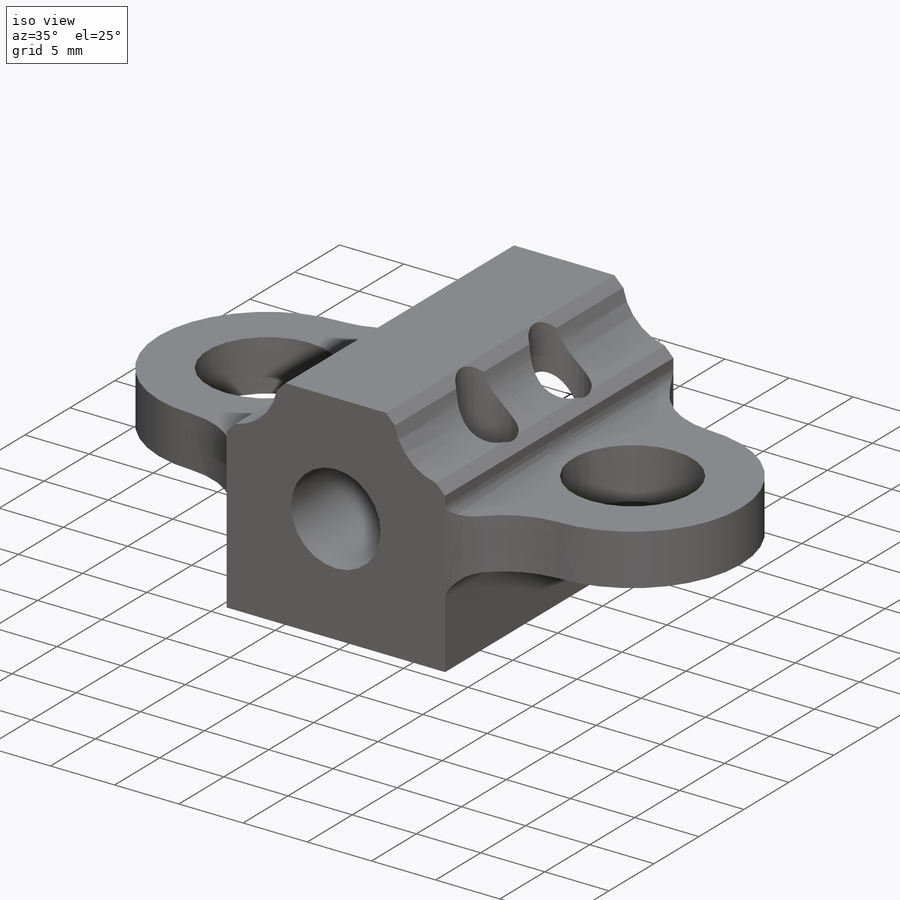
[diagram: iso view]
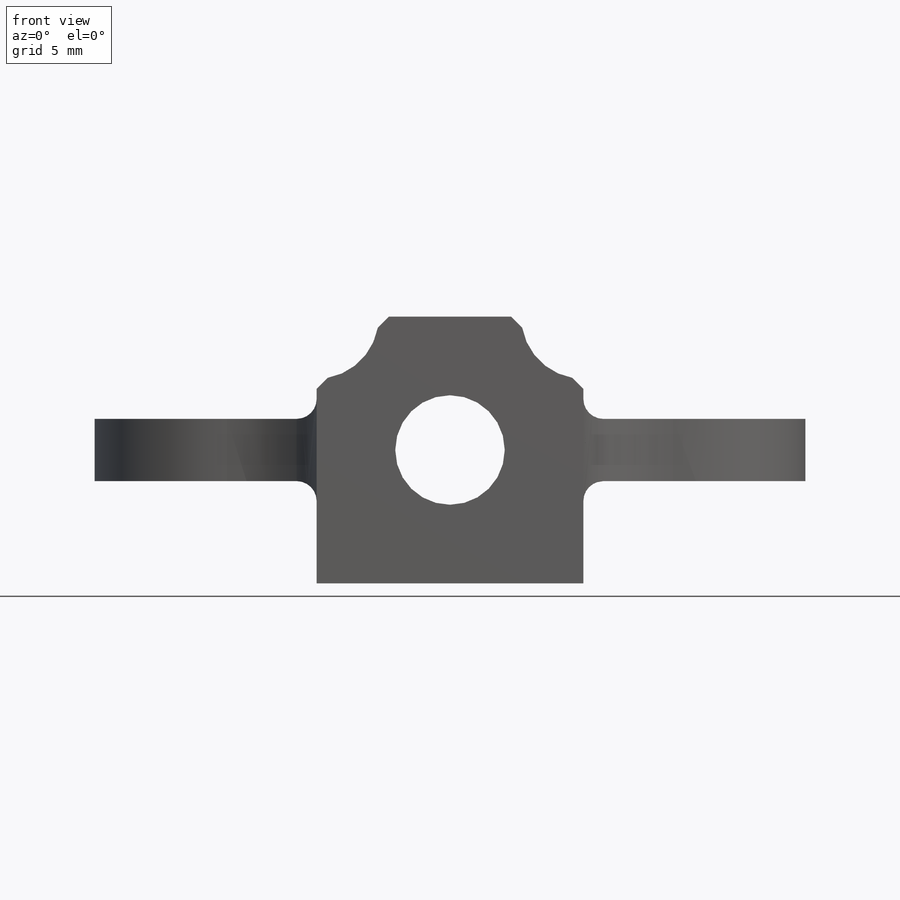
[diagram: front view]
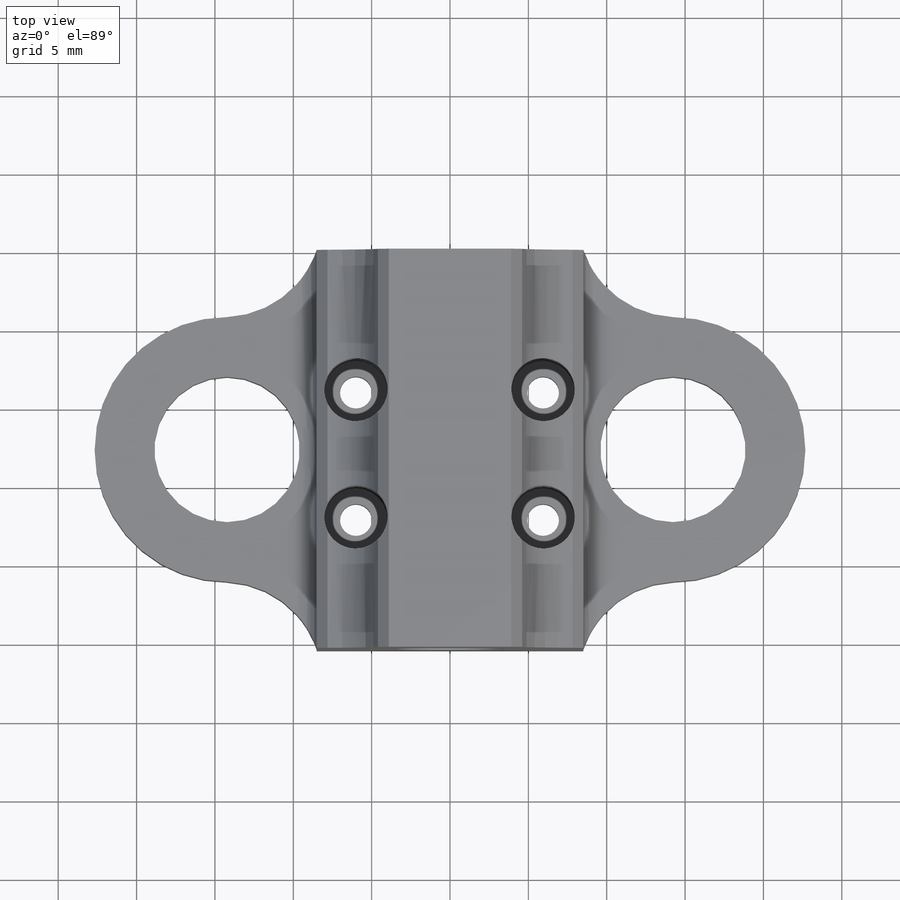
[diagram: top view]
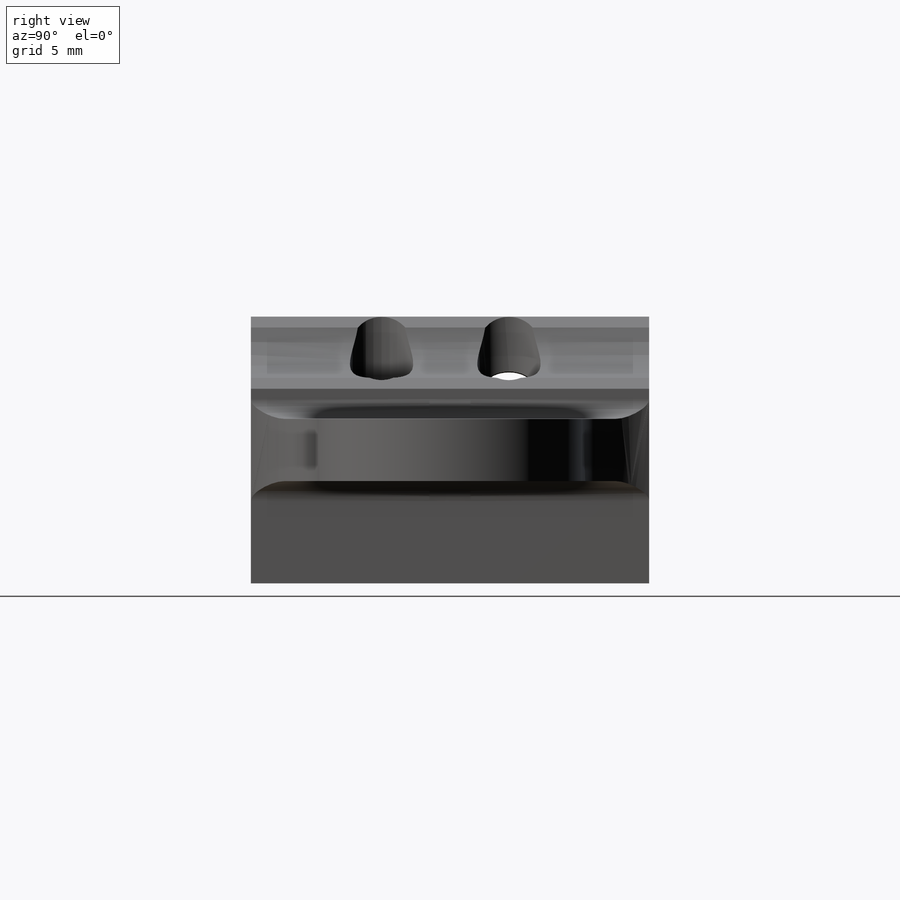
[diagram: right view]
SOLIDWORKS PART (.sldprt)
format: sldprt  version: not decoded by parser v0  size: 462,848 bytes
history: native  units: mm
features: sketch x7, plane x3, cut_extrude x3, extrude x2, material x1, cut_revolve x1, mirror x1, fillet x1, chamfer x1 (+13 scaffold rows collapsed)
feature tree (33):
  scaffold x13  (default folders/planes/origin — collapsed)
  material  "Material <not specified>"
  sketch  "Sketch1"  dims[D1=17.018mm D2=17.018mm]
  extrude  "Boss-Extrude1"  Depth=25.4mm
  plane  "Plane1"
  sketch  "Sketch2"  dims[c1.D1=12.7mm c1.D2=6.985mm c1.D3=12.7mm c2.D1=2.159mm]
  cut_revolve  "Cut-Revolve1"  Angle=360deg
  sketch  "Sketch4"  dims[D3=2.032mm D1=12.0mm D2=8.0mm D6=~8.333661mm D7=~17.066339mm D4=2.0 D5=2.0]
  cut_extrude  "Cut-Extrude2"  [1 undecoded]
  sketch  "Sketch5"  dims[c1.D2=9.271mm c1.D4=9.525mm c1.D10=~3.202294mm c1.D3=6.35mm c1.D1=16.51mm c2.D3=5.715mm c2.D4=~4.71011mm c3.D4=45.0deg c3.D1=~18.670081mm c4.D1=45.0deg c4.D4=3.81mm c4.D5=~7.48373mm c5.D5=~1.588476deg c6.D5=6.35mm c6.D6=6.35mm c6.D1=2.54mm c7.D5=~10.025573mm c8.D5=25.0deg c8.D6=6.35mm c8.D7=~16.974528mm c8.D1=12.7mm c9.D6=1.27mm c9.D7=1.27mm c10.D7=~65.213003deg c10.D8=5.715mm c10.D9=5.715mm c10.D1=2.54mm c10.D3=~0.968041mm c11.D3=45.0deg c11.D9=0.635mm c12.D3=5.715mm c12.D1=5.715mm]
  extrude  "Boss-Extrude2"  Depth=1.984375mm
  mirror  "Mirror1"
  sketch  "Sketch7"  dims[D1=7.9375mm]
  cut_extrude  "Cut-Extrude3"  [1 undecoded]
  fillet  "Fillet3"  Radius=1.27mm
  chamfer  "Chamfer1"  Distance=0.635mm Angle=45deg
  sketch  "Sketch10"  dims[D1=4.0386mm]
  cut_extrude  "Cut-Extrude6"  Depth=13.97mm
  sketch  "Sketch11"
  plane  "Plane2"
  plane  "Plane3"
decode coverage: 12 of 16 modeling features carry decoded parameters
note: ~ marks probable driven/reference dimensions
note: 2 parameter values undecoded
note: suppression state not decoded; provenance and decode notes live in map.json
